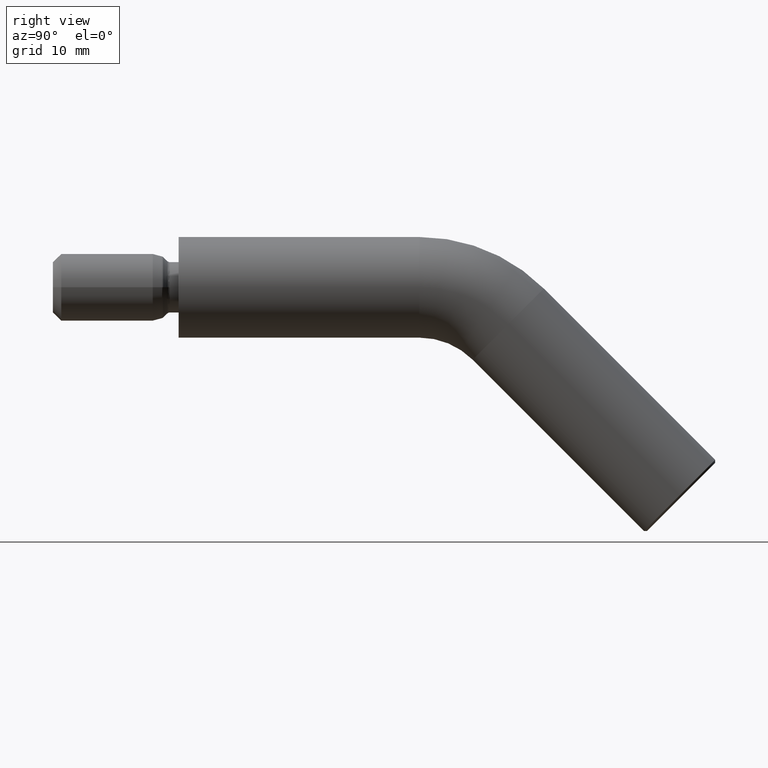
[diagram: clean part render]
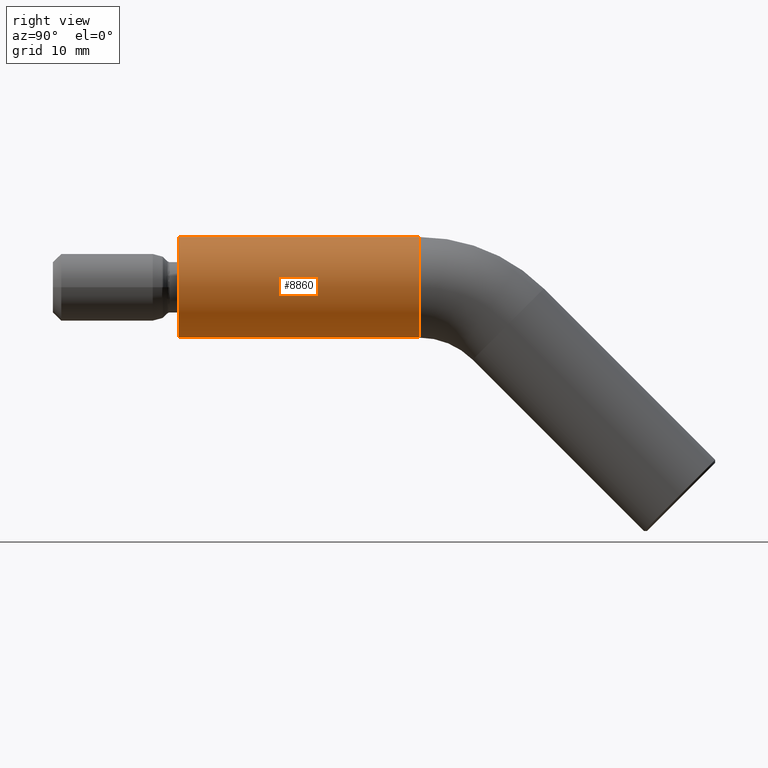
[diagram: same view with one face highlighted and labeled with its STEP entity id]
A machine part, right view. The second image highlights one B-rep face of the part: STEP entity #8860.
In plain terms, the highlighted cylindrical surface (partial cylindrical patch) has radius 6 mm, axis along (-0, -1, -0).
Its self-contained STEP definition (entity closure, byte-faithful):
#705 = ORIENTED_EDGE ( 'NONE', *, *, #6165, .T. ) ;
#1001 = FACE_OUTER_BOUND ( 'NONE', #10590, .T. ) ;
#1467 = VERTEX_POINT ( 'NONE', #10799 ) ;
#2350 = LINE ( 'NONE', #7228, #10189 ) ;
#2460 = CARTESIAN_POINT ( 'NONE',  ( 7.347880794884120700E-016, 28.78679656440364800, 6.000000000000000900 ) ) ;
#3441 = CARTESIAN_POINT ( 'NONE',  ( 0.0000000000000000000, 0.08748866352591695700, 0.0000000000000000000 ) ) ;
#4025 = VERTEX_POINT ( 'NONE', #9772 ) ;
#4247 = VECTOR ( 'NONE', #5305, 1000.000000000000000 ) ;
#4514 = DIRECTION ( 'NONE',  ( 0.0000000000000000000, 0.0000000000000000000, -1.000000000000000000 ) ) ;
#4562 = LINE ( 'NONE', #2460, #4247 ) ;
#5161 = EDGE_CURVE ( 'NONE', #5418, #1467, #5357, .T. ) ;
#5304 = CARTESIAN_POINT ( 'NONE',  ( 0.0000000000000000000, 0.08748866352591695700, -6.000000000000000900 ) ) ;
#5305 = DIRECTION ( 'NONE',  ( -0.0000000000000000000, -1.000000000000000000, -0.0000000000000000000 ) ) ;
#5357 = CIRCLE ( 'NONE', #8038, 6.000000000000000900 ) ;
#5365 = DIRECTION ( 'NONE',  ( 0.0000000000000000000, 0.0000000000000000000, -1.000000000000000000 ) ) ;
#5418 = VERTEX_POINT ( 'NONE', #7311 ) ;
#5635 = CYLINDRICAL_SURFACE ( 'NONE', #6121, 6.000000000000000900 ) ;
#6121 = AXIS2_PLACEMENT_3D ( 'NONE', #6154, #10934, #5365 ) ;
#6154 = CARTESIAN_POINT ( 'NONE',  ( 0.0000000000000000000, 28.78679656440364800, 0.0000000000000000000 ) ) ;
#6165 = EDGE_CURVE ( 'NONE', #5418, #4025, #4562, .T. ) ;
#6246 = CIRCLE ( 'NONE', #8986, 6.000000000000000900 ) ;
#6781 = CARTESIAN_POINT ( 'NONE',  ( 0.0000000000000000000, 28.78679656440364800, 0.0000000000000000000 ) ) ;
#7037 = VERTEX_POINT ( 'NONE', #5304 ) ;
#7228 = CARTESIAN_POINT ( 'NONE',  ( 0.0000000000000000000, 28.78679656440364800, -6.000000000000000900 ) ) ;
#7311 = CARTESIAN_POINT ( 'NONE',  ( 7.347880794884120700E-016, 28.78679656440364800, 6.000000000000000900 ) ) ;
#7479 = DIRECTION ( 'NONE',  ( -0.0000000000000000000, -1.000000000000000000, -0.0000000000000000000 ) ) ;
#7823 = DIRECTION ( 'NONE',  ( 0.0000000000000000000, 0.0000000000000000000, 1.000000000000000000 ) ) ;
#8038 = AXIS2_PLACEMENT_3D ( 'NONE', #6781, #11647, #7823 ) ;
#8151 = ORIENTED_EDGE ( 'NONE', *, *, #9508, .T. ) ;
#8438 = DIRECTION ( 'NONE',  ( 0.0000000000000000000, 1.000000000000000000, 0.0000000000000000000 ) ) ;
#8860 = ADVANCED_FACE ( 'NONE', ( #1001 ), #5635, .T. ) ;
#8986 = AXIS2_PLACEMENT_3D ( 'NONE', #3441, #8438, #4514 ) ;
#9508 = EDGE_CURVE ( 'NONE', #4025, #7037, #6246, .T. ) ;
#9772 = CARTESIAN_POINT ( 'NONE',  ( 7.347880794884120700E-016, 0.08748866352591695700, 6.000000000000000900 ) ) ;
#10189 = VECTOR ( 'NONE', #7479, 1000.000000000000000 ) ;
#10590 = EDGE_LOOP ( 'NONE', ( #11905, #705, #8151, #11067 ) ) ;
#10799 = CARTESIAN_POINT ( 'NONE',  ( 0.0000000000000000000, 28.78679656440364800, -6.000000000000000900 ) ) ;
#10934 = DIRECTION ( 'NONE',  ( -0.0000000000000000000, -1.000000000000000000, -0.0000000000000000000 ) ) ;
#11067 = ORIENTED_EDGE ( 'NONE', *, *, #11537, .F. ) ;
#11537 = EDGE_CURVE ( 'NONE', #1467, #7037, #2350, .T. ) ;
#11647 = DIRECTION ( 'NONE',  ( 0.0000000000000000000, 1.000000000000000000, 0.0000000000000000000 ) ) ;
#11905 = ORIENTED_EDGE ( 'NONE', *, *, #5161, .F. ) ;